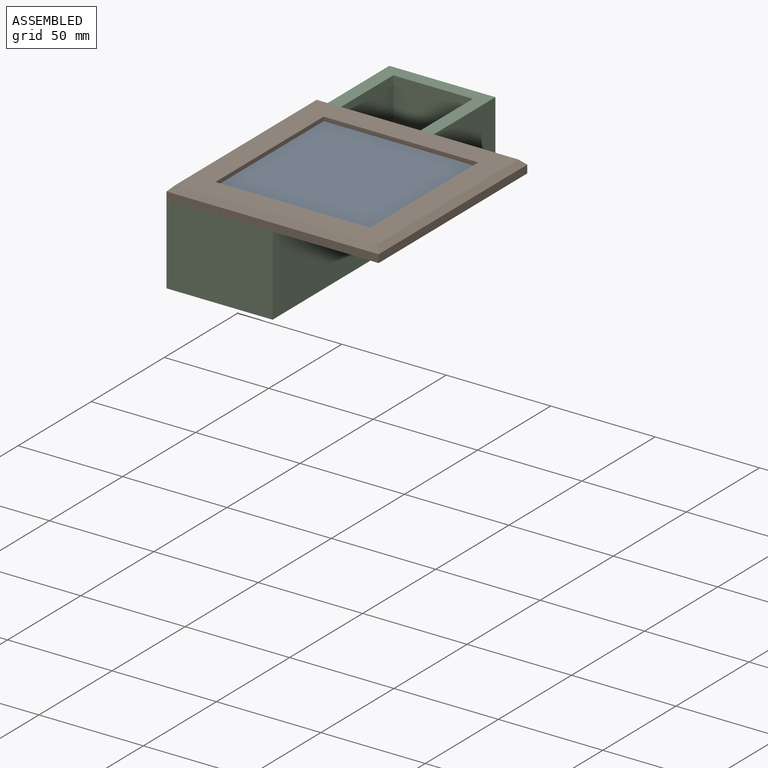
[diagram: assembled view]
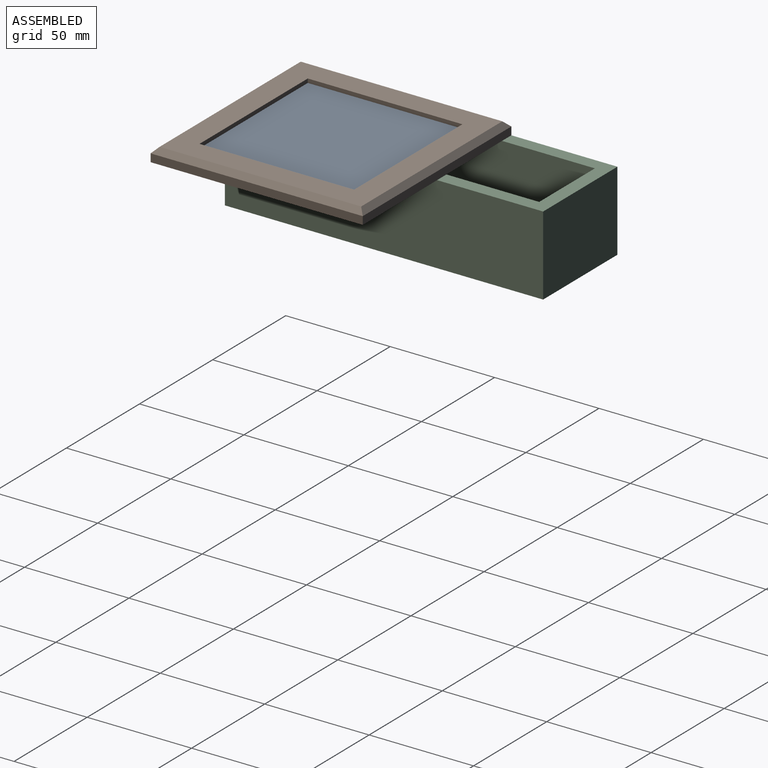
[diagram: assembled view, second angle]
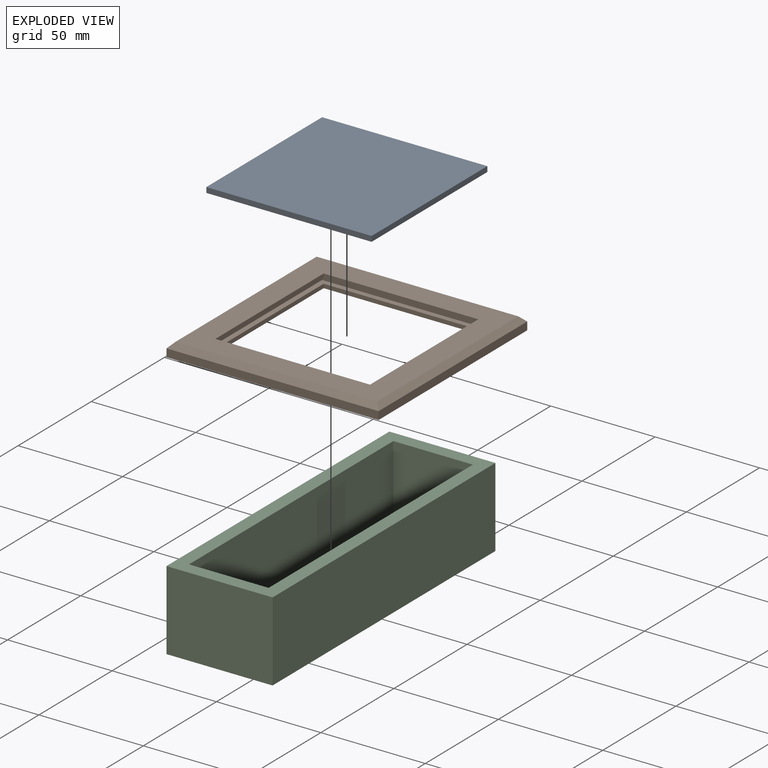
[diagram: exploded view]
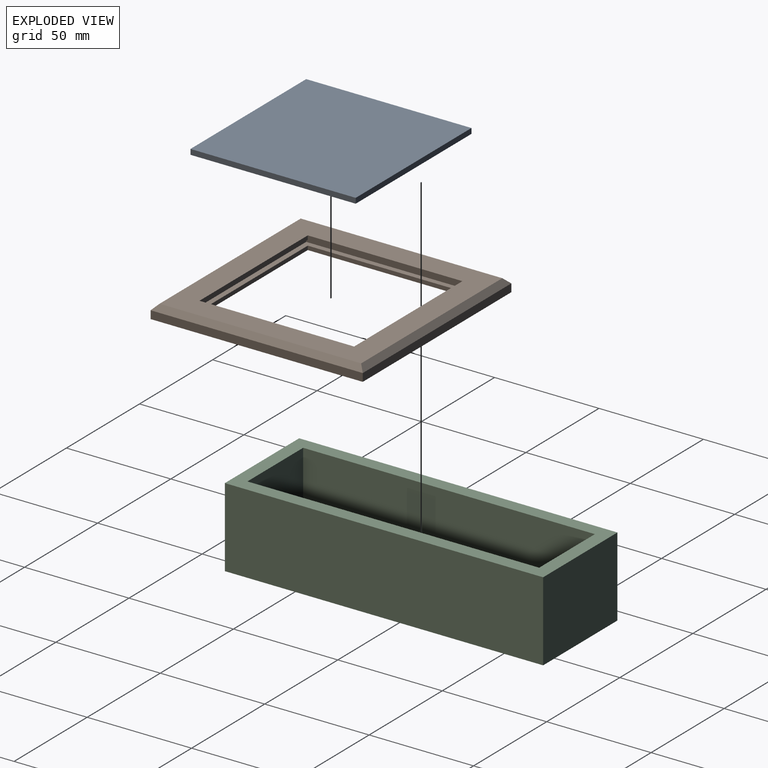
[diagram: exploded view, second angle]
ASSEMBLY  parts=3 mates=2
PART A: 6 faces, bbox 79.1x79.1x2.5 mm
  f0: plane 79.14x2.54mm, normal (0,1,0), area 201mm2, adj f1,f3,f4,f5
  f1: plane 79.14x2.54mm, normal (-1,0,0), area 201mm2, adj f0,f2,f4,f5
  f2: plane 79.14x2.54mm, normal (0,-1,0), area 201mm2, adj f1,f3,f4,f5
  f3: plane 79.14x2.54mm, normal (1,0,0), area 201mm2, adj f0,f2,f4,f5
  f4: plane 79.14x79.14mm, normal (0,0,1), area 6262.8mm2, adj f0,f1,f2,f3
  f5: plane 79.14x79.14mm, normal (0,0,-1), area 6262.8mm2, adj f0,f1,f2,f3
PART B: 24 faces, bbox 101.6x101.6x6.4 mm
  f0: plane 74.06x1.91mm, normal (1,0,0), area 141.1mm2, adj f1,f3,f12,f14
  f1: plane 74.06x1.91mm, normal (0,1,0), area 141.1mm2, adj f0,f2,f12,f14
  f2: plane 74.06x1.91mm, normal (-1,0,0), area 141.1mm2, adj f1,f3,f12,f14
  f3: plane 74.06x1.91mm, normal (0,-1,0), area 141.1mm2, adj f0,f2,f12,f14
  f4: plane 101.6x3.81mm, normal (-1,0,0), area 387.1mm2, adj f5,f11,f13,f22
  f5: plane 101.6x3.81mm, normal (0,-1,0), area 387.1mm2, adj f4,f6,f13,f20
  f6: plane 101.6x3.81mm, normal (1,0,0), area 387.1mm2, adj f5,f11,f13,f21
  f7: plane 74.06x1.91mm, normal (0,1,0), area 141.1mm2, adj f8,f10,f13,f15
  f8: plane 74.06x1.91mm, normal (1,0,0), area 141.1mm2, adj f7,f9,f13,f15
  f9: plane 74.06x1.91mm, normal (0,-1,0), area 141.1mm2, adj f8,f10,f13,f15
  f10: plane 74.06x1.91mm, normal (-1,0,0), area 141.1mm2, adj f7,f9,f13,f15
  f11: plane 101.6x3.81mm, normal (0,1,0), area 387.1mm2, adj f4,f6,f13,f23
  f12: plane 96.52x96.52mm, normal (0,0,1), area 3831.6mm2, adj f0,f1,f2,f3,f20,f21,f22,f23
  f13: plane 101.6x101.6mm, normal (0,0,-1), area 4838mm2, adj f4,f5,f6,f7,f8,f9,f10,f11
  f14: plane 79.14x79.14mm, normal (0,0,-1), area 778.2mm2, adj f0,f1,f2,f3,f16,f17,f18,f19
  f15: plane 79.14x79.14mm, normal (0,0,1), area 778.2mm2, adj f7,f8,f9,f10,f16,f17,f18,f19
  f16: plane 79.14x2.54mm, normal (0,-1,0), area 201mm2, adj f14,f15,f17,f19
  f17: plane 79.14x2.54mm, normal (-1,0,0), area 201mm2, adj f14,f15,f16,f18
  f18: plane 79.14x2.54mm, normal (0,1,0), area 201mm2, adj f14,f15,f17,f19
  f19: plane 79.14x2.54mm, normal (1,0,0), area 201mm2, adj f14,f15,f16,f18
  f20: plane 101.6x2.54mm, normal (0,-0.71,0.71), area 355.8mm2, adj f5,f12,f21,f22
  f21: plane 101.6x2.54mm, normal (0.71,0,0.71), area 355.8mm2, adj f6,f12,f20,f23
  f22: plane 101.6x2.54mm, normal (-0.71,0,0.71), area 355.8mm2, adj f4,f12,f20,f23
  f23: plane 101.6x2.54mm, normal (0,0.71,0.71), area 355.8mm2, adj f11,f12,f21,f22
PART C: 11 faces, bbox 50.8x152.4x38.1 mm
  f0: plane 152.4x38.1mm, normal (-1,0,0), area 5806.4mm2, adj f1,f3,f4,f5
  f1: plane 50.8x38.1mm, normal (0,-1,0), area 1935.5mm2, adj f0,f2,f4,f5
  f2: plane 152.4x38.1mm, normal (1,0,0), area 5806.4mm2, adj f1,f3,f4,f5
  f3: plane 50.8x38.1mm, normal (0,1,0), area 1935.5mm2, adj f0,f2,f4,f5
  f4: plane 152.4x50.8mm, normal (0,0,1), area 2419.3mm2, adj f0,f1,f2,f3,f6,f7,f8,f9
  f5: plane 152.4x50.8mm, normal (0,0,-1), area 7741.9mm2, adj f0,f1,f2,f3
  f6: plane 139.7x31.75mm, normal (1,0,0), area 4435.5mm2, adj f4,f7,f9,f10
  f7: plane 38.1x31.75mm, normal (0,1,0), area 1209.7mm2, adj f4,f6,f8,f10
  f8: plane 139.7x31.75mm, normal (-1,0,0), area 4435.5mm2, adj f4,f7,f9,f10
  f9: plane 38.1x31.75mm, normal (0,-1,0), area 1209.7mm2, adj f4,f6,f8,f10
  f10: plane 139.7x38.1mm, normal (0,0,1), area 5322.6mm2, adj f6,f7,f8,f9
PLACE A t=(173.35,160.33,17.71)mm
PLACE B t=(162.11,69.96,15.8)mm
PLACE C t=(162.11,69.96,-22.3)mm
MATE fastened B.f13 <-> C.f4  axis (0,0,1) through (162.11,69.96,15.8)mm
MATE fastened A.f5 <-> B.f15  axis (0,0,-1) through (252.48,160.33,17.71)mm
